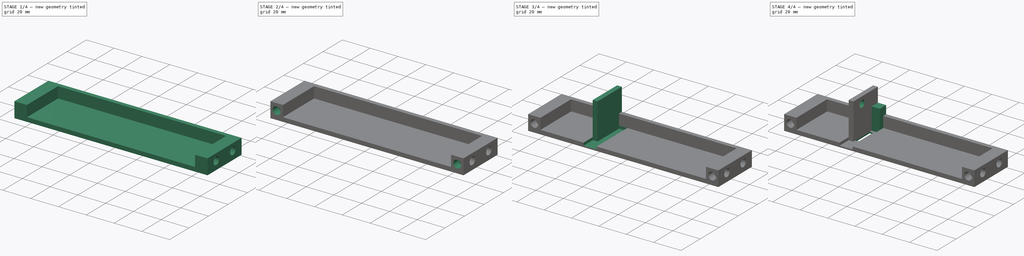
[diagram: build sequence overview — one tinted view per stage of 4, left to right]
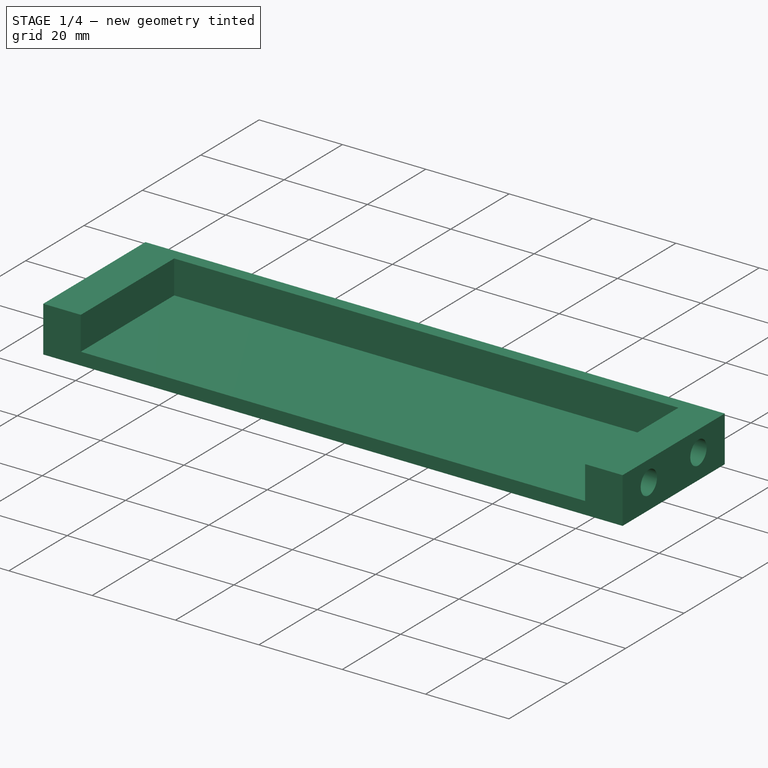
[diagram: stage 1 of 4 — iso view after this stage's code; geometry added in this stage tinted green]
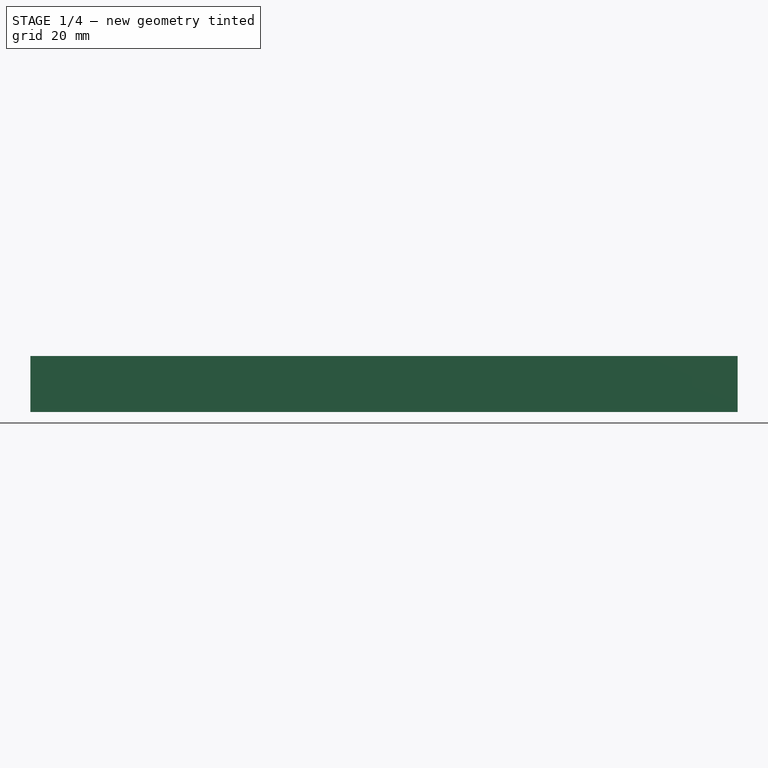
[diagram: stage 1 of 4 — front view after this stage's code; geometry added in this stage tinted green]
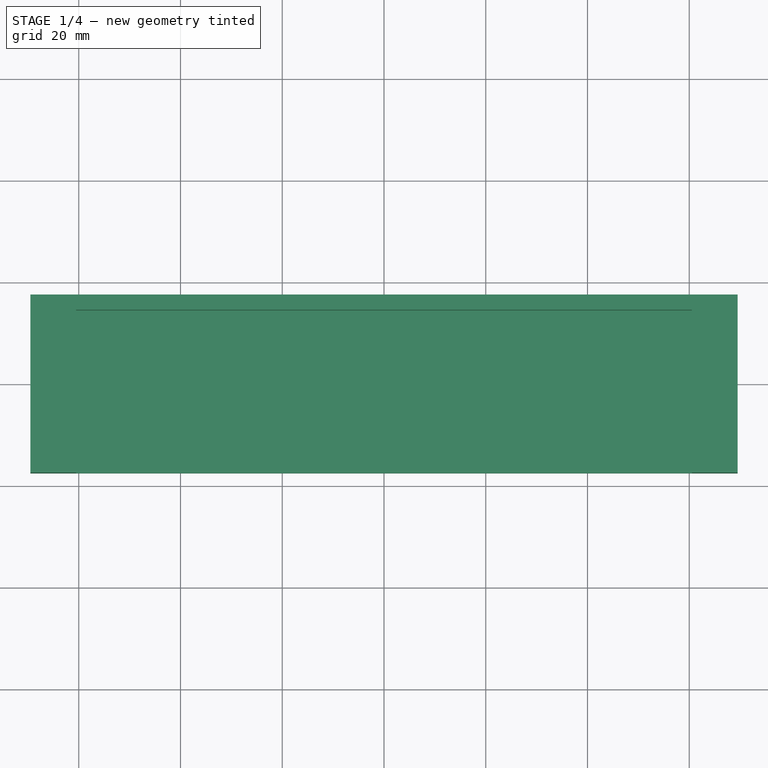
[diagram: stage 1 of 4 — top view after this stage's code; geometry added in this stage tinted green]
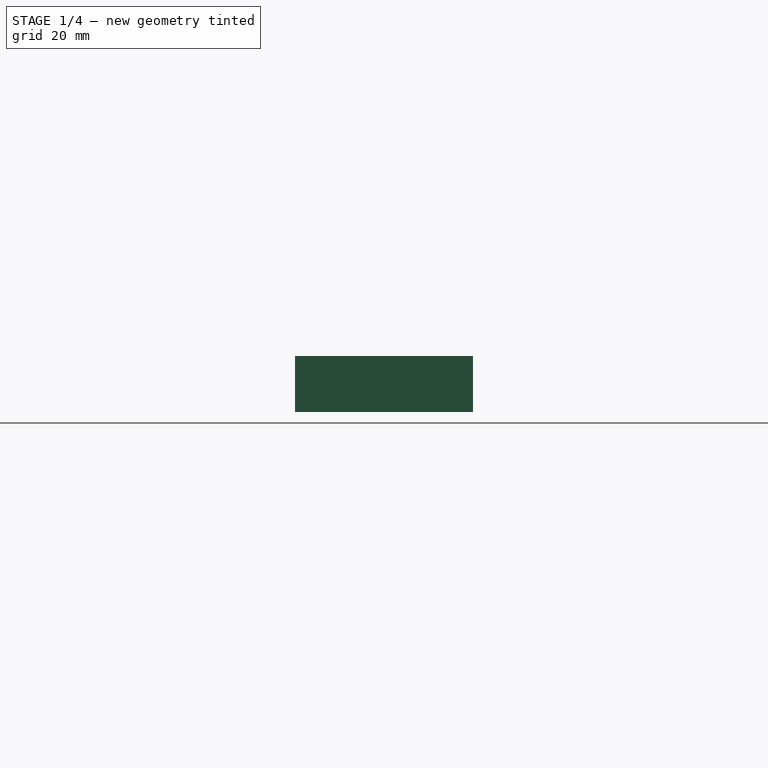
[diagram: stage 1 of 4 — right view after this stage's code; geometry added in this stage tinted green]
FCSTD DOCUMENT
Label: ElectronicEnclosureSDSide
objects: Sketcher::SketchObject×9, PartDesign::Pocket×6, PartDesign::Pad×3, PartDesign::Mirrored×3, PartDesign::MultiTransform×1, Part::Feature×1
note: 32 computed .brp shape members not serialized (recipe doc carries the construction recipe); baked Part::Feature solids carry a one-line shape summary decoded from their .brp

FEATURE [Sketcher::SketchObject] Sketch
  sketch-geometry (4):
    g0: LineSegment StartX=-69.5 StartY=-17.5 StartZ=0 EndX=69.5 EndY=-17.5 EndZ=0
    g1: LineSegment StartX=69.5 StartY=-17.5 StartZ=0 EndX=69.5 EndY=17.5 EndZ=0
    g2: LineSegment StartX=69.5 StartY=17.5 StartZ=0 EndX=-69.5 EndY=17.5 EndZ=0
    g3: LineSegment StartX=-69.5 StartY=17.5 StartZ=0 EndX=-69.5 EndY=-17.5 EndZ=0
  constraints (11):
    c: Coincident(g0,g1)
    c: Coincident(g1,g2)
    c: Coincident(g2,g3)
    c: Coincident(g3,g0)
    c: Horizontal(g0)
    c: Horizontal(g2)
    c: Vertical(g1)
    c: Vertical(g3)
    c: Symmetric(g0,g1,g-1)
    c: DistanceY(g1) = 35
    c: DistanceX(g2) = -139
FEATURE [PartDesign::Pad] Pad
  Length = 11
  Length2 = 100
  Sketch = -> Sketch
  Type = 0
FEATURE [Sketcher::SketchObject] Sketch001
  ExternalGeometry = -> [Pad]
  Placement = pos=(0,0,11) rot=(0,0,1;0rad)
  Support = -> Pad [Face6]
  sketch-geometry (4):
    g0: LineSegment StartX=-60.5 StartY=-17.5 StartZ=0 EndX=60.5 EndY=-17.5 EndZ=0
    g1: LineSegment StartX=60.5 StartY=-17.5 StartZ=0 EndX=60.5 EndY=14.5 EndZ=0
    g2: LineSegment StartX=60.5 StartY=14.5 StartZ=0 EndX=-60.5 EndY=14.5 EndZ=0
    g3: LineSegment StartX=-60.5 StartY=14.5 StartZ=0 EndX=-60.5 EndY=-17.5 EndZ=0
  constraints (12):
    c: Coincident(g0,g1)
    c: Coincident(g1,g2)
    c: Coincident(g2,g3)
    c: Coincident(g3,g0)
    c: Horizontal(g0)
    c: Horizontal(g2)
    c: Vertical(g1)
    c: Vertical(g3)
    c: Symmetric(g2,g1,g-2)
    c: DistanceX(g2,g-3) = -9
    c: DistanceY(g2,g-3) = 3
    c: PointOnObject(g-3,g0)
FEATURE [PartDesign::Pocket] Pocket
  Length = 8
  Sketch = -> Sketch001
  Type = 0
FEATURE [Sketcher::SketchObject] Sketch002
  Placement = pos=(69.5,0,0) rot=(0.57735,0.57735,0.57735;2.0944rad)
  Support = -> Pocket [Face1]
  sketch-geometry (3):
    g0: Circle CenterX=-8.5 CenterY=6 CenterZ=0 NormalX=0 NormalY=0 NormalZ=1 Radius=2.8
    g1: Circle CenterX=8.5 CenterY=6 CenterZ=0 NormalX=0 NormalY=0 NormalZ=1 Radius=2.8
    g2: LineSegment [constr] StartX=-8.5 StartY=6 StartZ=0 EndX=8.5 EndY=6 EndZ=0
  constraints (8):
    c: Equal(g0,g1)
    c: Coincident(g2,g0)
    c: Coincident(g2,g1)
    c: Horizontal(g2)
    c: Symmetric(g0,g1,g-2)
    c: DistanceY(g0) = 6
    c: DistanceX(g2) = 17
    c: Radius(g1) = 2.8
FEATURE [PartDesign::Pocket] Pocket001
  Length = 6.5
  Sketch = -> Sketch002
  Type = 0
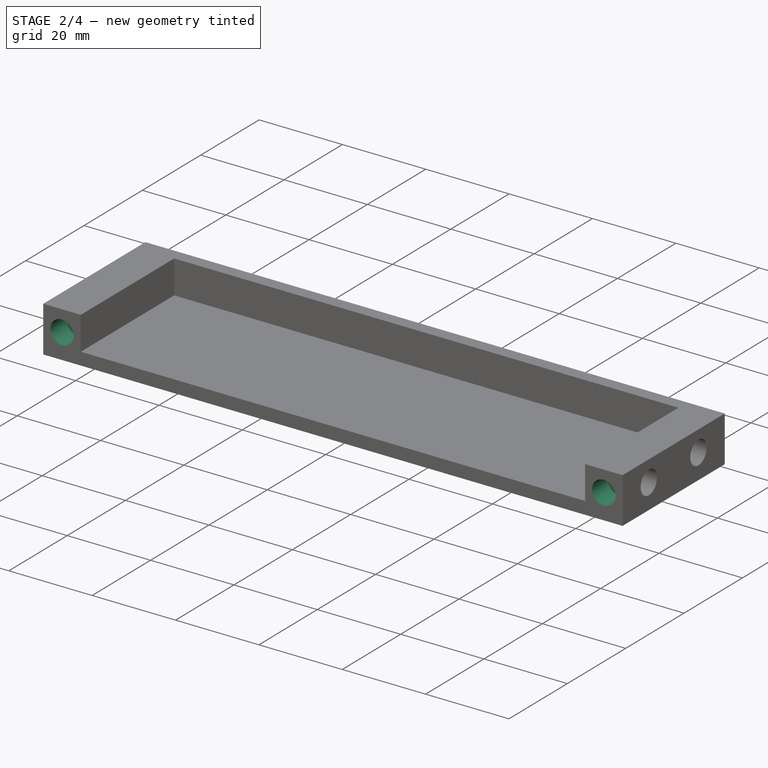
[diagram: stage 2 of 4 — iso view after this stage's code; geometry added in this stage tinted green]
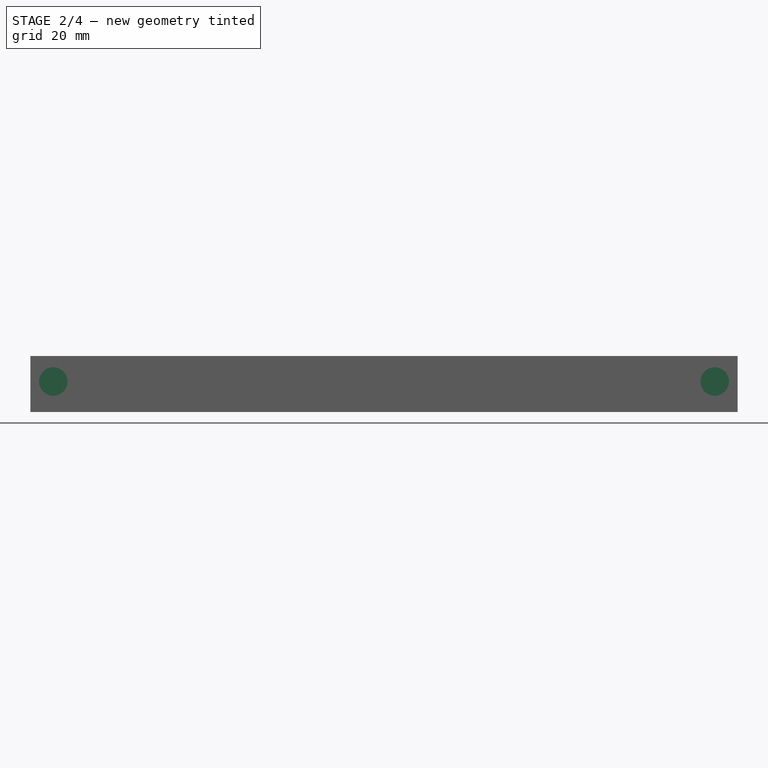
[diagram: stage 2 of 4 — front view after this stage's code; geometry added in this stage tinted green]
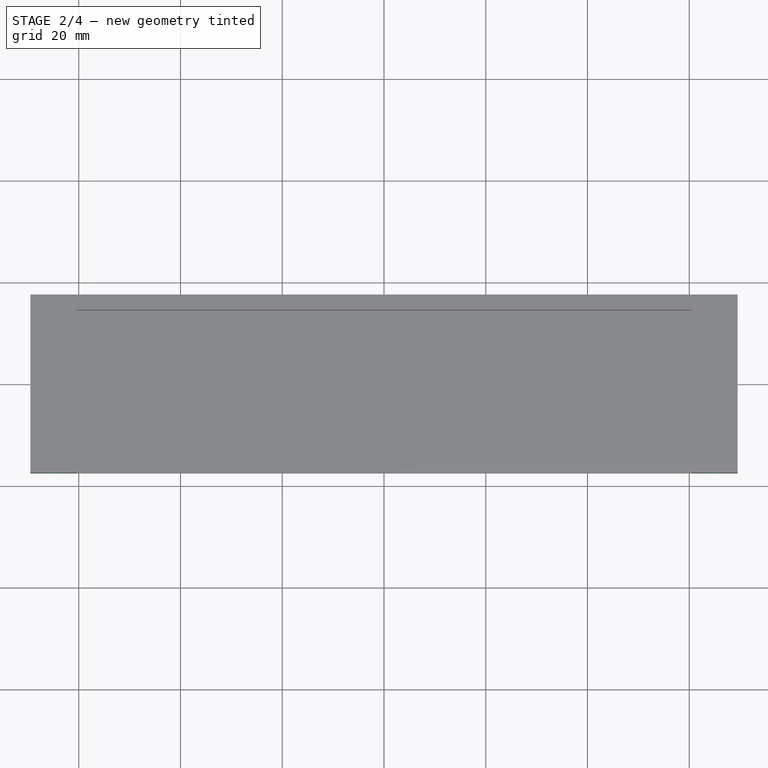
[diagram: stage 2 of 4 — top view after this stage's code; geometry added in this stage tinted green]
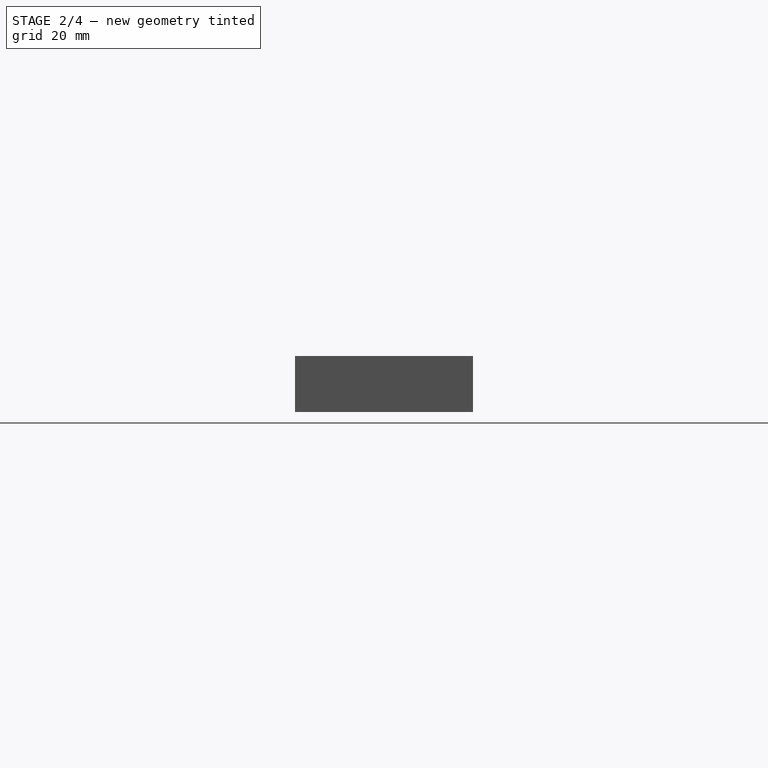
[diagram: stage 2 of 4 — right view after this stage's code; geometry added in this stage tinted green]
FEATURE [PartDesign::Mirrored] Mirrored
  Originals = -> [Pocket001]
  StdMirrorPlane = YZ
FEATURE [Sketcher::SketchObject] Sketch003
  ExternalGeometry = -> [Mirrored]
  Placement = pos=(0,-17.5,0) rot=(1,0,0;1.5708rad)
  Support = -> Mirrored [Face1]
  sketch-geometry (2):
    g0: Circle CenterX=65 CenterY=6 CenterZ=0 NormalX=0 NormalY=0 NormalZ=1 Radius=2.8
    g1: LineSegment [constr] StartX=65 StartY=6 StartZ=0 EndX=65 EndY=11 EndZ=0
  constraints (5):
    c: Radius(g0) = 2.8
    c: Coincident(g1,g0)
    c: Vertical(g1)
    c: Symmetric(g-3,g-3,g1)
    c: DistanceY(g0) = 6
FEATURE [PartDesign::Pocket] Pocket002
  Length = 5.5
  Sketch = -> Sketch003
  Type = 0
FEATURE [PartDesign::Mirrored] Mirrored001
  StdMirrorPlane = YZ
FEATURE [PartDesign::Mirrored] Mirrored002
  StdMirrorPlane = XZ
FEATURE [PartDesign::MultiTransform] MultiTransform
  Originals = -> [Pocket002]
  Transformations = -> [Mirrored001,Mirrored002]
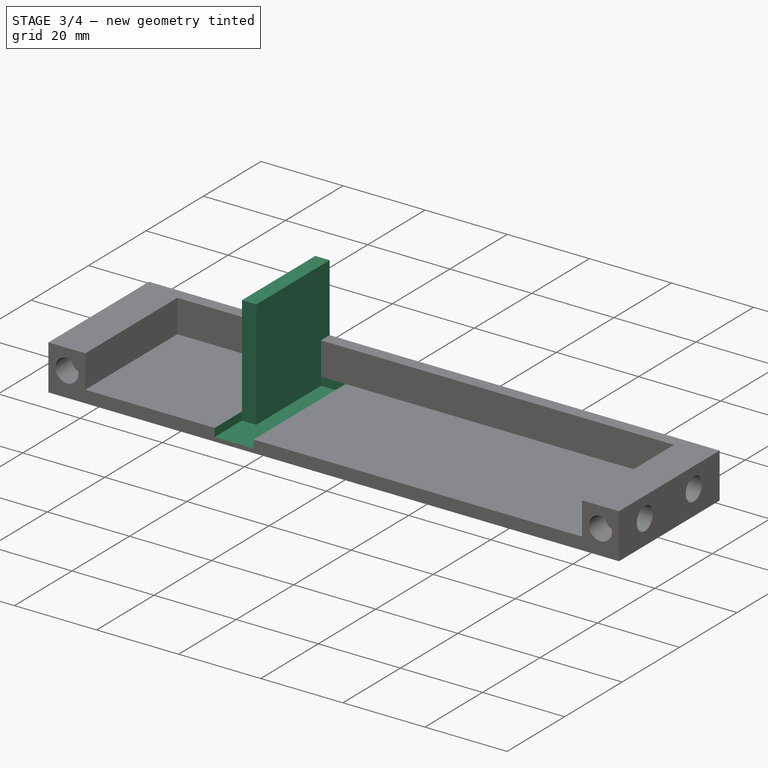
[diagram: stage 3 of 4 — iso view after this stage's code; geometry added in this stage tinted green]
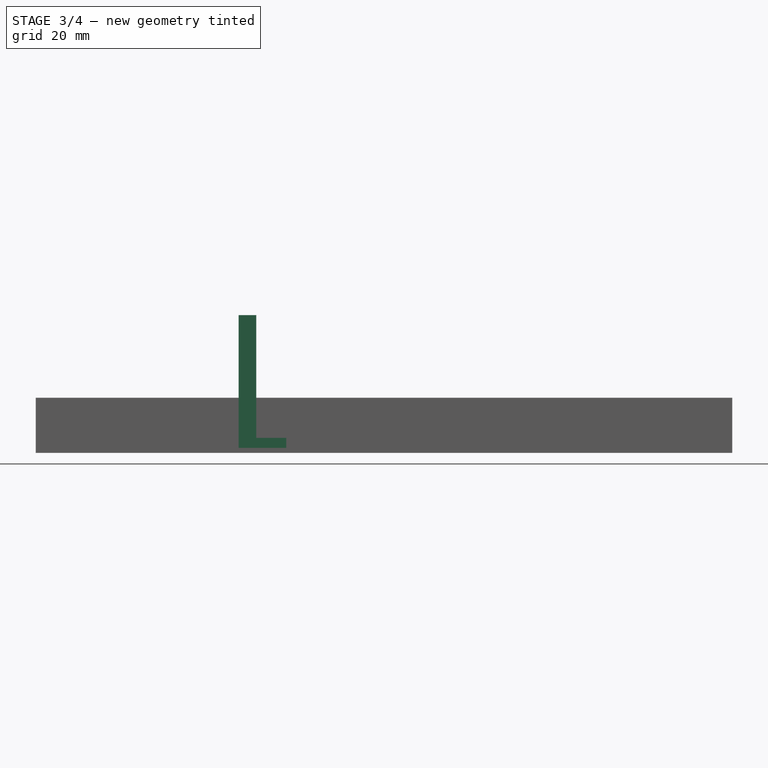
[diagram: stage 3 of 4 — front view after this stage's code; geometry added in this stage tinted green]
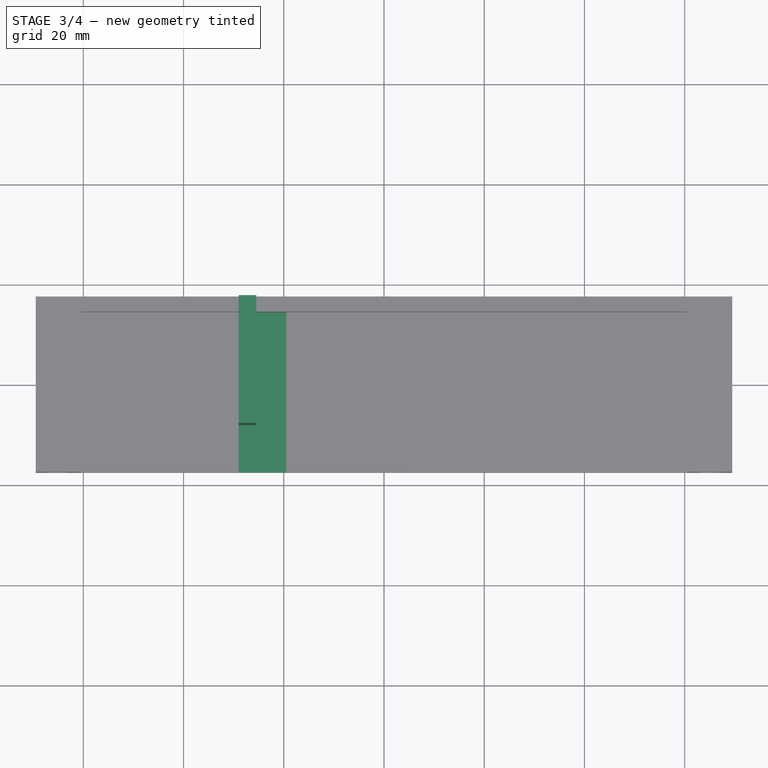
[diagram: stage 3 of 4 — top view after this stage's code; geometry added in this stage tinted green]
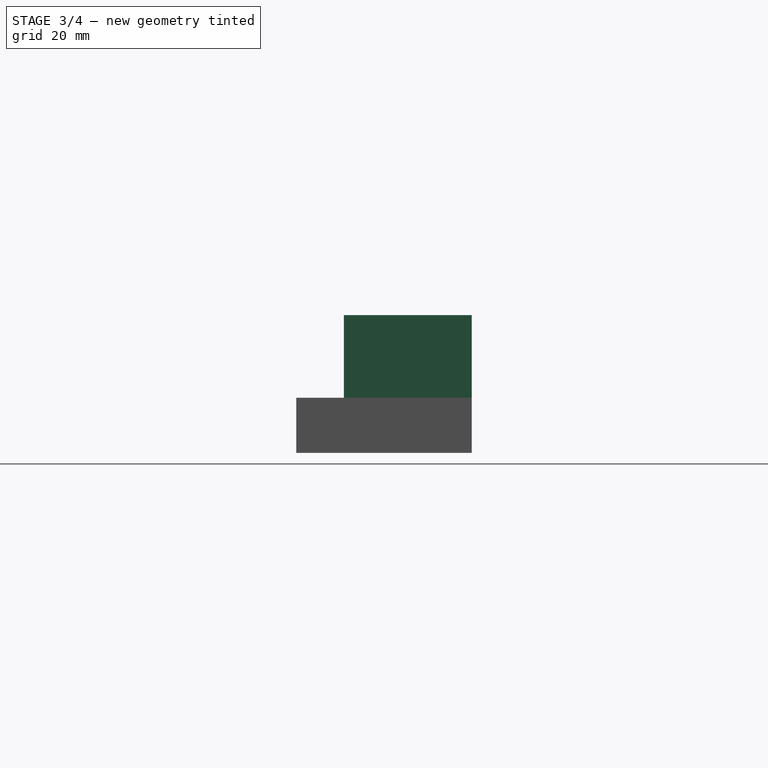
[diagram: stage 3 of 4 — right view after this stage's code; geometry added in this stage tinted green]
FEATURE [Sketcher::SketchObject] Sketch004
  ExternalGeometry = -> [MultiTransform]
  Placement = pos=(0,0,3) rot=(0,0,1;0rad)
  Support = -> MultiTransform [Face10]
  sketch-geometry (4):
    g0: LineSegment StartX=-29 StartY=-18.5 StartZ=0 EndX=-19.5 EndY=-18.5 EndZ=0
    g1: LineSegment StartX=-19.5 StartY=-18.5 StartZ=0 EndX=-19.5 EndY=14.5 EndZ=0
    g2: LineSegment StartX=-19.5 StartY=14.5 StartZ=0 EndX=-29 EndY=14.5 EndZ=0
    g3: LineSegment StartX=-29 StartY=14.5 StartZ=0 EndX=-29 EndY=-18.5 EndZ=0
  constraints (12):
    c: Coincident(g0,g1)
    c: Coincident(g1,g2)
    c: Coincident(g2,g3)
    c: Coincident(g3,g0)
    c: Horizontal(g0)
    c: Horizontal(g2)
    c: Vertical(g1)
    c: Vertical(g3)
    c: DistanceX(g0) = 9.5
    c: PointOnObject(g-3,g2)
    c: DistanceY(g0,g-3) = 1
    c: DistanceX(g-3,g0) = 31.5
FEATURE [PartDesign::Pocket] Pocket003
  Length = 2
  Sketch = -> Sketch004
  Type = 0
FEATURE [Sketcher::SketchObject] Sketch005
  ExternalGeometry = -> [Pocket003]
  Placement = pos=(0,0,1) rot=(0,0,1;0rad)
  Support = -> Pocket003 [Face7]
  sketch-geometry (4):
    g0: LineSegment StartX=-29 StartY=17.5 StartZ=0 EndX=-25.5 EndY=17.5 EndZ=0
    g1: LineSegment StartX=-25.5 StartY=17.5 StartZ=0 EndX=-25.5 EndY=-8 EndZ=0
    g2: LineSegment StartX=-25.5 StartY=-8 StartZ=0 EndX=-29 EndY=-8 EndZ=0
    g3: LineSegment StartX=-29 StartY=-8 StartZ=0 EndX=-29 EndY=17.5 EndZ=0
  constraints (12):
    c: Coincident(g0,g1)
    c: Coincident(g1,g2)
    c: Coincident(g2,g3)
    c: Coincident(g3,g0)
    c: Horizontal(g0)
    c: Horizontal(g2)
    c: Vertical(g1)
    c: Vertical(g3)
    c: PointOnObject(g-4,g3)
    c: PointOnObject(g-3,g0)
    c: DistanceX(g2) = -3.5
    c: DistanceY(g1) = -25.5
FEATURE [PartDesign::Pad] Pad001
  Length = 26.5
  Length2 = 100
  Sketch = -> Sketch005
  Type = 0
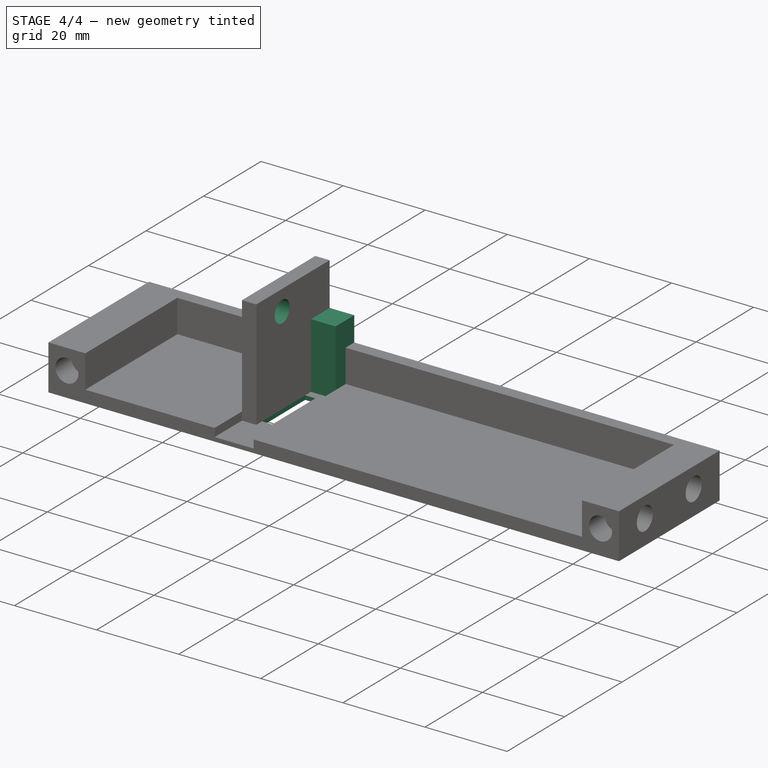
[diagram: stage 4 of 4 — iso view after this stage's code; geometry added in this stage tinted green]
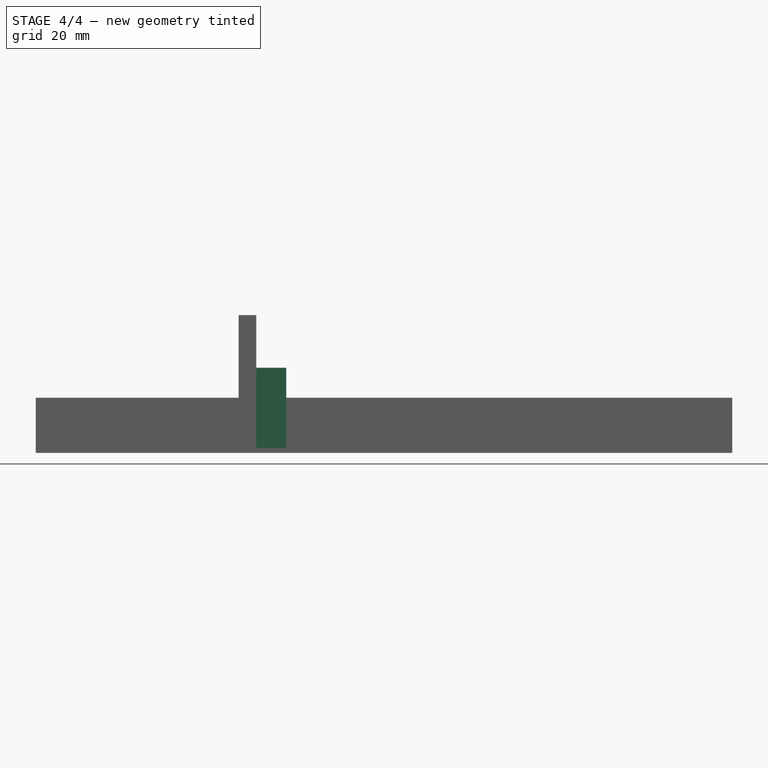
[diagram: stage 4 of 4 — front view after this stage's code; geometry added in this stage tinted green]
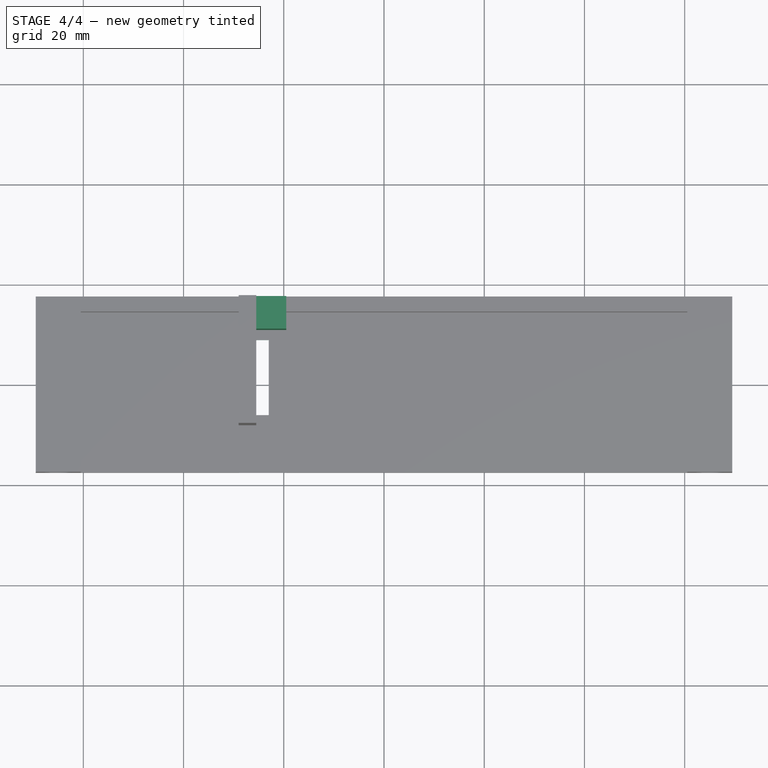
[diagram: stage 4 of 4 — top view after this stage's code; geometry added in this stage tinted green]
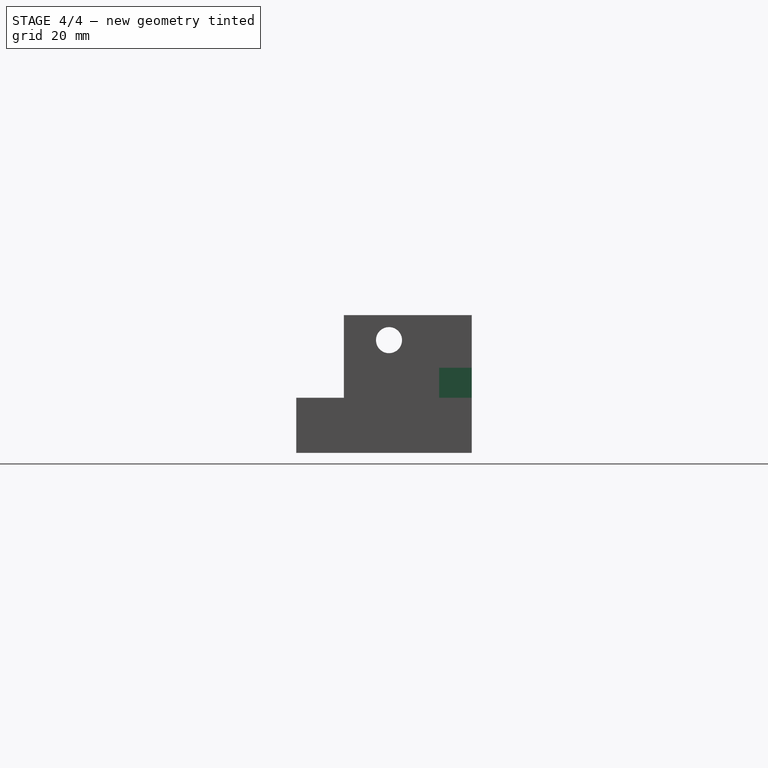
[diagram: stage 4 of 4 — right view after this stage's code; geometry added in this stage tinted green]
FEATURE [Sketcher::SketchObject] Sketch006
  ExternalGeometry = -> [Pad001]
  Placement = pos=(0,0,1) rot=(0,0,1;0rad)
  Support = -> Pad001 [Face7]
  sketch-geometry (4):
    g0: LineSegment StartX=-25.5 StartY=17.5 StartZ=0 EndX=-19.5 EndY=17.5 EndZ=0
    g1: LineSegment StartX=-19.5 StartY=17.5 StartZ=0 EndX=-19.5 EndY=11 EndZ=0
    g2: LineSegment StartX=-19.5 StartY=11 StartZ=0 EndX=-25.5 EndY=11 EndZ=0
    g3: LineSegment StartX=-25.5 StartY=11 StartZ=0 EndX=-25.5 EndY=17.5 EndZ=0
  constraints (11):
    c: Coincident(g0,g1)
    c: Coincident(g1,g2)
    c: Coincident(g2,g3)
    c: Coincident(g3,g0)
    c: Horizontal(g0)
    c: Horizontal(g2)
    c: Vertical(g1)
    c: Vertical(g3)
    c: PointOnObject(g-4,g1)
    c: Coincident(g-3,g0)
    c: DistanceY(g1) = -6.5
FEATURE [PartDesign::Pad] Pad002
  Length = 16
  Length2 = 100
  Sketch = -> Sketch006
  Type = 0
FEATURE [Sketcher::SketchObject] Sketch007
  ExternalGeometry = -> [Pad002]
  Placement = pos=(0,0,1) rot=(0,0,1;0rad)
  Support = -> Pad002 [Face7]
  sketch-geometry (4):
    g0: LineSegment StartX=-25.5 StartY=9 StartZ=0 EndX=-23 EndY=9 EndZ=0
    g1: LineSegment StartX=-23 StartY=9 StartZ=0 EndX=-23 EndY=-6 EndZ=0
    g2: LineSegment StartX=-23 StartY=-6 StartZ=0 EndX=-25.5 EndY=-6 EndZ=0
    g3: LineSegment StartX=-25.5 StartY=-6 StartZ=0 EndX=-25.5 EndY=9 EndZ=0
  constraints (12):
    c: Coincident(g0,g1)
    c: Coincident(g1,g2)
    c: Coincident(g2,g3)
    c: Coincident(g3,g0)
    c: Horizontal(g0)
    c: Horizontal(g2)
    c: Vertical(g1)
    c: Vertical(g3)
    c: DistanceY(g1) = -15
    c: DistanceX(g2) = -2.5
    c: PointOnObject(g-3,g3)
    c: DistanceY(g-3,g1) = 2
FEATURE [PartDesign::Pocket] Pocket004
  Length = 5
  Sketch = -> Sketch007
  Type = 1
FEATURE [Sketcher::SketchObject] Sketch008
  ExternalGeometry = -> [Pocket004]
  Placement = pos=(-25.5,0,0) rot=(0.57735,0.57735,0.57735;2.0944rad)
  Support = -> Pocket004 [Face17]
  sketch-geometry (1):
    g0: Circle CenterX=1 CenterY=22.5 CenterZ=0 NormalX=0 NormalY=0 NormalZ=1 Radius=2.6
  constraints (3):
    c: Radius(g0) = 2.6
    c: DistanceX(g-3,g0) = 9
    c: DistanceY(g0,g-3) = 5
FEATURE [PartDesign::Pocket] Pocket005
  Length = 5
  Sketch = -> Sketch008
  Type = 1
FEATURE [Part::Feature] Pocket005001  label="PartRefine"
  shape: bbox 139 x 35 x 27.5 mm, 43 faces (baked)
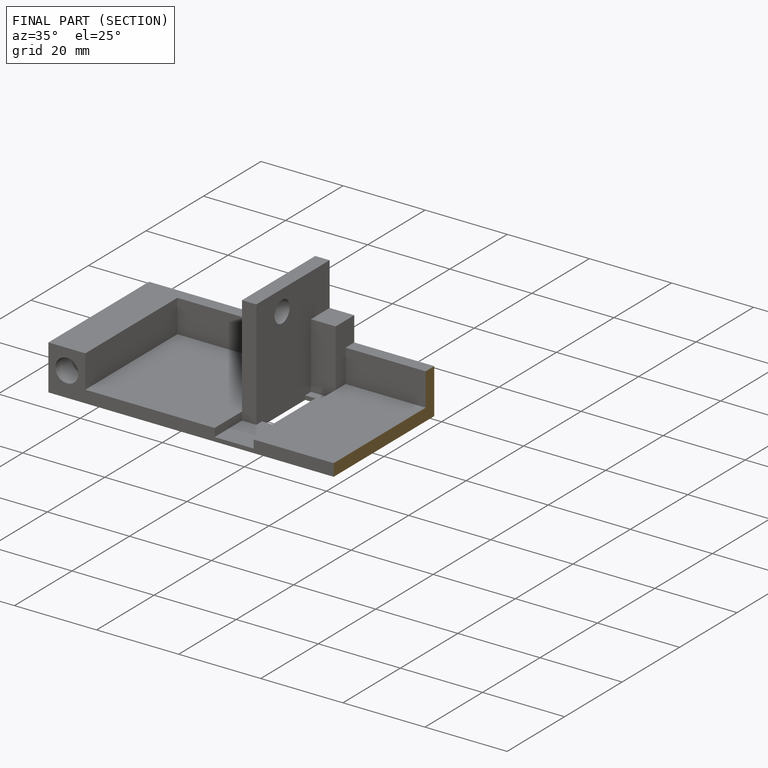
[diagram: finished part — half-section view (interior)]
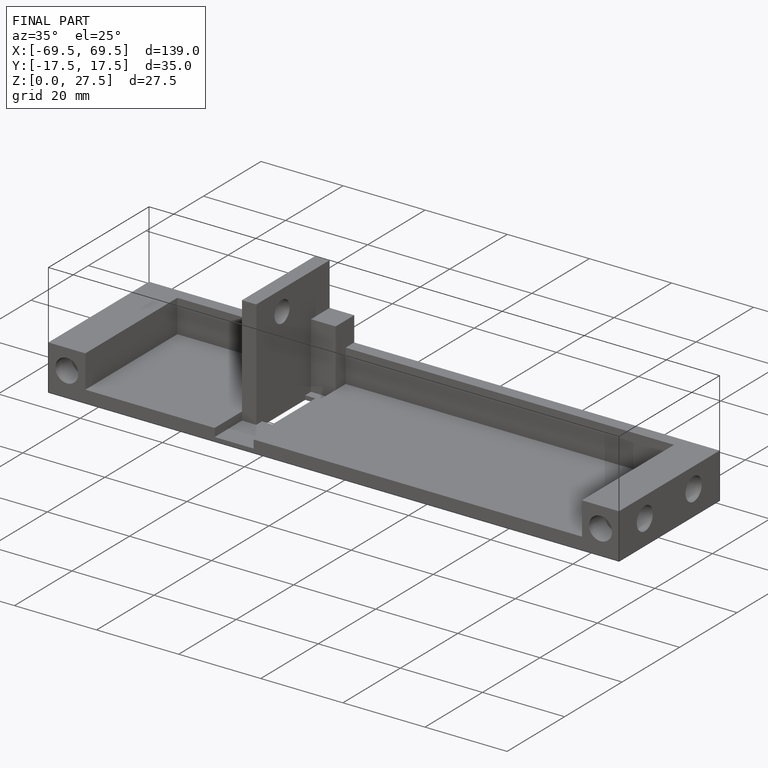
[diagram: finished part — iso view with bounding-box wireframe]
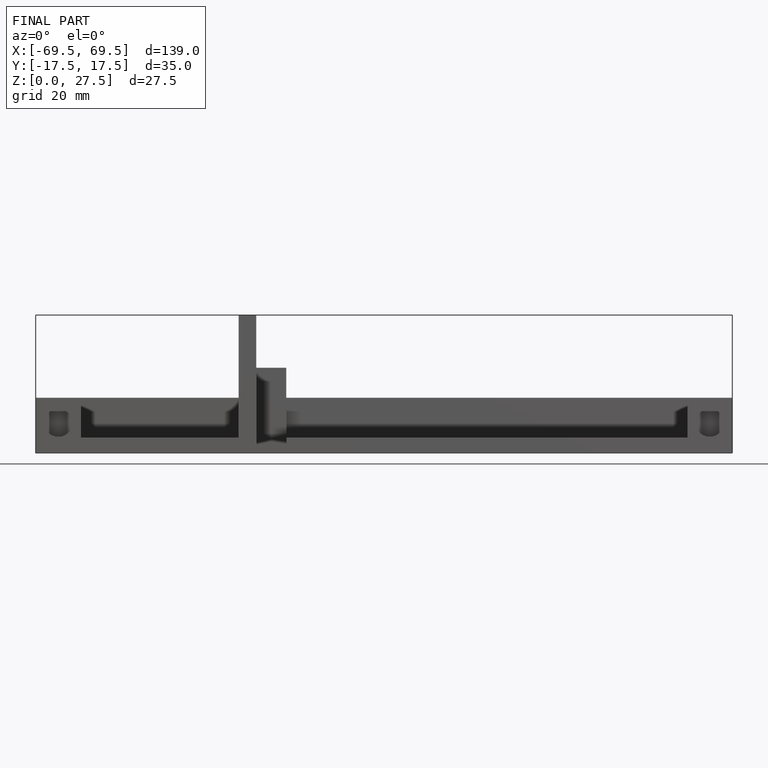
[diagram: finished part — front view with bounding-box wireframe]
